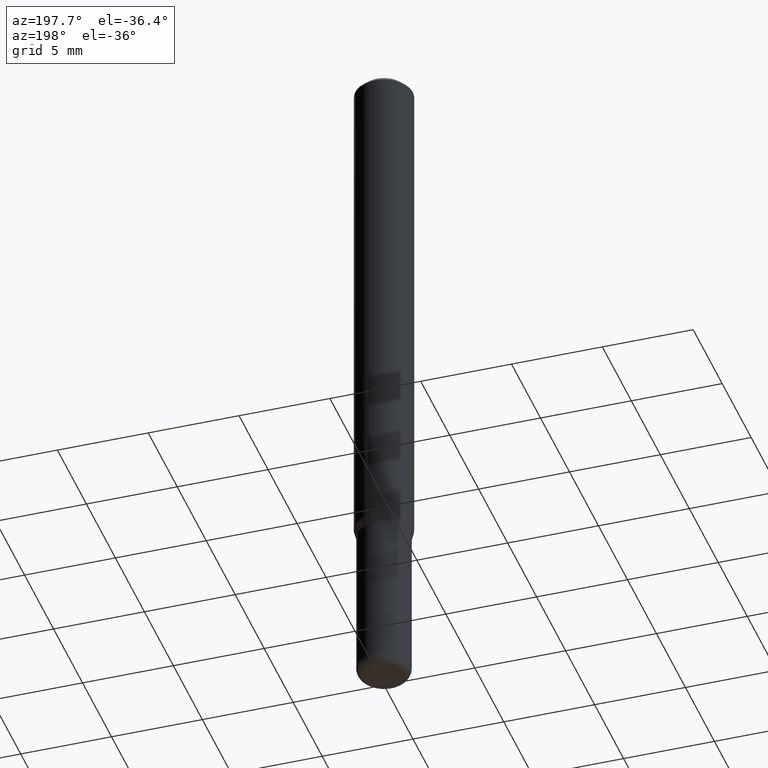
[diagram: clean part render]
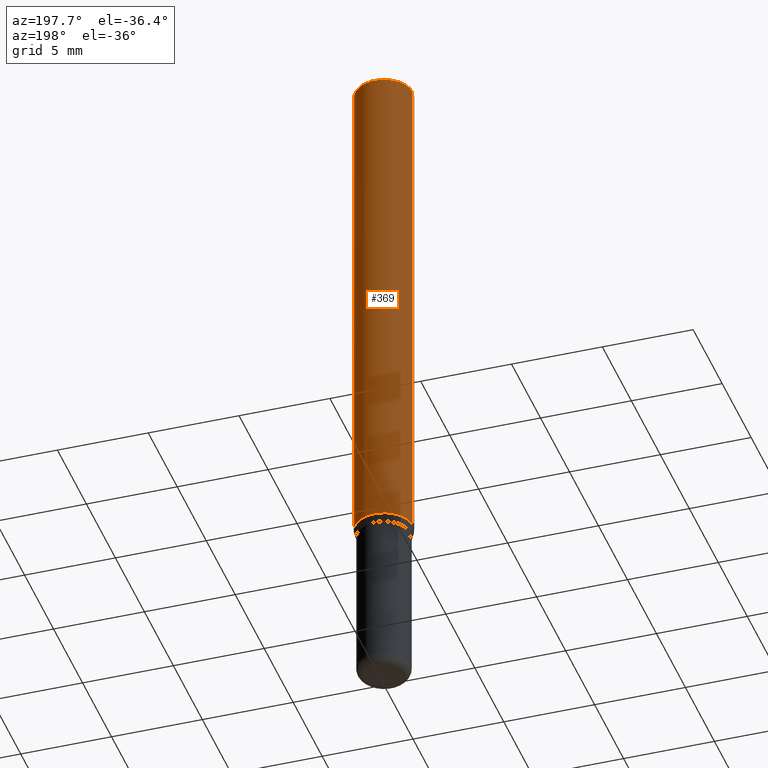
[diagram: same view with one face highlighted and labeled with its STEP entity id]
A machine part, auxiliary view. The second image highlights one B-rep face of the part: STEP entity #369.
In plain terms, the highlighted cylindrical surface (edge-blend (fillet) strip) has radius 1.5875 mm, axis along (-0, 0, 1).
Its self-contained STEP definition (entity closure, byte-faithful):
#29 = DIRECTION ( 'NONE',  ( -2.445468806185136597E-29, 3.491481338843145583E-15, 1.000000000000000000 ) ) ;
#41 = CARTESIAN_POINT ( 'NONE',  ( 0.06250000000000000000, -4.364351673553916694E-16, 3.047610484872459871E-30 ) ) ;
#46 = AXIS2_PLACEMENT_3D ( 'NONE', #386, #29, #191 ) ;
#63 = DIRECTION ( 'NONE',  ( -2.445468806185136597E-29, 3.491481338843145583E-15, 1.000000000000000000 ) ) ;
#73 = VERTEX_POINT ( 'NONE', #445 ) ;
#80 = AXIS2_PLACEMENT_3D ( 'NONE', #336, #63, #217 ) ;
#84 = DIRECTION ( 'NONE',  ( -2.445468806185136877E-29, 3.491481338843145188E-15, 1.000000000000000000 ) ) ;
#123 = VERTEX_POINT ( 'NONE', #210 ) ;
#157 = VECTOR ( 'NONE', #84, 39.37007874015748143 ) ;
#158 = CARTESIAN_POINT ( 'NONE',  ( -0.06250000000000000000, -1.548394002303358444E-15, -0.01499999999999970281 ) ) ;
#191 = DIRECTION ( 'NONE',  ( 1.000000000000000000, -6.982962677686266711E-15, 4.876176775795935793E-29 ) ) ;
#199 = CARTESIAN_POINT ( 'NONE',  ( -0.06250000000000000000, 4.440892098500626162E-16, -3.074334431409316114E-30 ) ) ;
#210 = CARTESIAN_POINT ( 'NONE',  ( 0.06250000000000000000, -4.888073874380378612E-16, -0.01499999999999970281 ) ) ;
#217 = DIRECTION ( 'NONE',  ( 1.000000000000000000, -6.982962677686262766E-15, 0.000000000000000000 ) ) ;
#222 = ORIENTED_EDGE ( 'NONE', *, *, #290, .T. ) ;
#226 = FACE_OUTER_BOUND ( 'NONE', #322, .T. ) ;
#265 = ORIENTED_EDGE ( 'NONE', *, *, #465, .F. ) ;
#271 = ORIENTED_EDGE ( 'NONE', *, *, #443, .T. ) ;
#290 = EDGE_CURVE ( 'NONE', #461, #73, #511, .T. ) ;
#305 = CARTESIAN_POINT ( 'NONE',  ( 3.668203209277632395E-31, -5.237222008264614861E-17, -0.01499999999999970281 ) ) ;
#310 = VECTOR ( 'NONE', #475, 39.37007874015748143 ) ;
#322 = EDGE_LOOP ( 'NONE', ( #222, #271, #387, #265 ) ) ;
#336 = CARTESIAN_POINT ( 'NONE',  ( 2.754428713916943180E-29, -3.932594204224195830E-15, -1.126339745962155803 ) ) ;
#369 = ADVANCED_FACE ( 'NONE', ( #226 ), #414, .T. ) ;
#386 = CARTESIAN_POINT ( 'NONE',  ( 0.000000000000000000, 0.000000000000000000, 0.000000000000000000 ) ) ;
#387 = ORIENTED_EDGE ( 'NONE', *, *, #514, .F. ) ;
#391 = VERTEX_POINT ( 'NONE', #158 ) ;
#414 = CYLINDRICAL_SURFACE ( 'NONE', #46, 0.06250000000000000000 ) ;
#426 = DIRECTION ( 'NONE',  ( 1.000000000000000000, -6.982962677686266711E-15, 0.000000000000000000 ) ) ;
#434 = CARTESIAN_POINT ( 'NONE',  ( 0.06250000000000000000, -4.369029371579587499E-15, -1.126339745962155803 ) ) ;
#443 = EDGE_CURVE ( 'NONE', #73, #391, #517, .T. ) ;
#445 = CARTESIAN_POINT ( 'NONE',  ( -0.06250000000000000000, -3.488504994374132819E-15, -1.126339745962155803 ) ) ;
#461 = VERTEX_POINT ( 'NONE', #434 ) ;
#465 = EDGE_CURVE ( 'NONE', #461, #123, #515, .T. ) ;
#469 = DIRECTION ( 'NONE',  ( -2.445468806185136597E-29, 3.491481338843145583E-15, 1.000000000000000000 ) ) ;
#475 = DIRECTION ( 'NONE',  ( -2.445468806185136877E-29, 3.491481338843145188E-15, 1.000000000000000000 ) ) ;
#482 = AXIS2_PLACEMENT_3D ( 'NONE', #305, #469, #426 ) ;
#491 = CIRCLE ( 'NONE', #482, 0.06250000000000000000 ) ;
#511 = CIRCLE ( 'NONE', #80, 0.06250000000000000000 ) ;
#514 = EDGE_CURVE ( 'NONE', #123, #391, #491, .T. ) ;
#515 = LINE ( 'NONE', #41, #157 ) ;
#517 = LINE ( 'NONE', #199, #310 ) ;